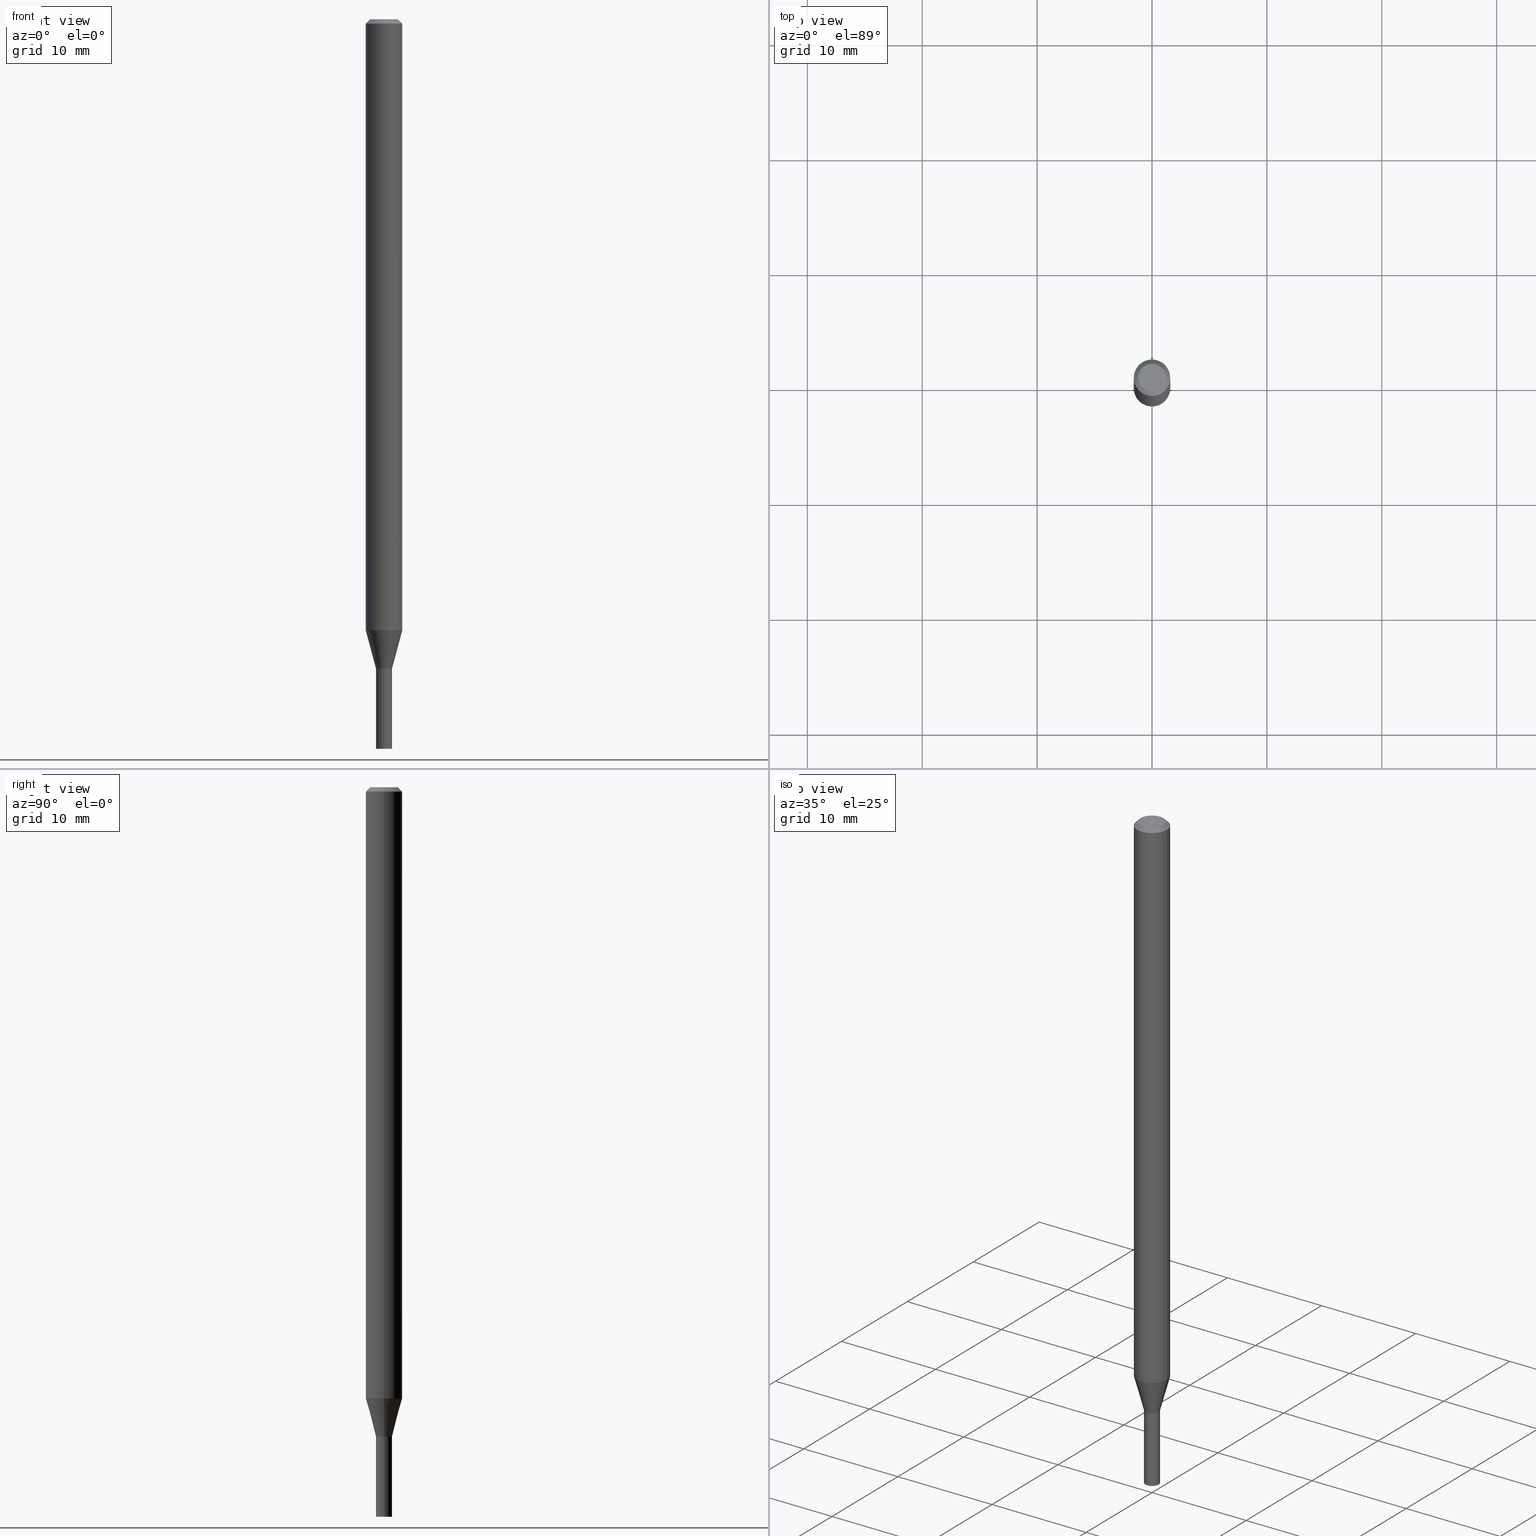
[diagram: canonical four-view strip — front | top / right | iso, engineering-drawing reading convention]
A machine part, canonical four-view strip (front | top / right | iso — engineering-drawing reading convention). The complete STEP part file that produces these views, byte-faithful:
ISO-10303-21;
HEADER;
FILE_DESCRIPTION (( 'STEP AP203' ),
    '1' );
FILE_NAME ('01238.STEP',
    '2024-03-20T00:24:33',
    ( '' ),
    ( '' ),
    'SwSTEP 2.0',
    'SolidWorks 2023',
    '' );
FILE_SCHEMA (( 'CONFIG_CONTROL_DESIGN' ));
ENDSEC;

DATA;
#1 = CIRCLE ( 'NONE', #261, 0.06250000000000000000 ) ;
#2 = ORIENTED_EDGE ( 'NONE', *, *, #334, .F. ) ;
#3 = APPLICATION_CONTEXT ( 'configuration controlled 3d designs of mechanical parts and assemblies' ) ;
#4 = DATE_AND_TIME ( #395, #352 ) ;
#5 = VERTEX_POINT ( 'NONE', #451 ) ;
#6 = CALENDAR_DATE ( 2024, 19, 3 ) ;
#7 = DIRECTION ( 'NONE',  ( 1.000000000000000000, -6.982962677686261189E-15, 0.000000000000000000 ) ) ;
#8 = EDGE_LOOP ( 'NONE', ( #46, #187, #230, #447 ) ) ;
#9 = APPLICATION_PROTOCOL_DEFINITION ( 'international standard', 'config_control_design', 1994, #3 ) ;
#10 = VERTEX_POINT ( 'NONE', #122 ) ;
#11 = APPROVAL_ROLE ( '' ) ;
#12 = AXIS2_PLACEMENT_3D ( 'NONE', #133, #233, #227 ) ;
#13 =( GEOMETRIC_REPRESENTATION_CONTEXT ( 3 ) GLOBAL_UNCERTAINTY_ASSIGNED_CONTEXT ( ( #183 ) ) GLOBAL_UNIT_ASSIGNED_CONTEXT ( ( #405, #332, #111 ) ) REPRESENTATION_CONTEXT ( 'NONE', 'WORKASPACE' ) );
#14 = ORIENTED_EDGE ( 'NONE', *, *, #35, .F. ) ;
#15 = CARTESIAN_POINT ( 'NONE',  ( 0.02750000000000019790, -7.960577452562373396E-15, -2.225000000000000089 ) ) ;
#16 = DIRECTION ( 'NONE',  ( -2.445468806185136877E-29, 3.491481338843145188E-15, 1.000000000000000000 ) ) ;
#17 = CYLINDRICAL_SURFACE ( 'NONE', #114, 0.06250000000000000000 ) ;
#18 = AXIS2_PLACEMENT_3D ( 'NONE', #272, #291, #70 ) ;
#19 = PRODUCT ( '01238', '01238', '', ( #148 ) ) ;
#20 = DIRECTION ( 'NONE',  ( -2.445468806185136877E-29, 3.491481338843145188E-15, 1.000000000000000000 ) ) ;
#21 = ADVANCED_FACE ( 'NONE', ( #89 ), #336, .T. ) ;
#22 = ORIENTED_EDGE ( 'NONE', *, *, #237, .T. ) ;
#23 = DIRECTION ( 'NONE',  ( 1.000000000000000000, -6.982962677686261189E-15, 0.000000000000000000 ) ) ;
#24 = EDGE_LOOP ( 'NONE', ( #253, #36, #341, #112 ) ) ;
#25 = CARTESIAN_POINT ( 'NONE',  ( -0.02750000000000000014, 1.953992523340275521E-16, -1.352707149820099181E-30 ) ) ;
#26 = EDGE_LOOP ( 'NONE', ( #182, #77, #255, #379 ) ) ;
#27 = ADVANCED_FACE ( 'NONE', ( #278 ), #17, .T. ) ;
#28 = CARTESIAN_POINT ( 'NONE',  ( 3.316907271900976096E-16, 0.04749999999999999362, -1.231061139556668131E-16 ) ) ;
#29 = AXIS2_PLACEMENT_3D ( 'NONE', #410, #79, #374 ) ;
#30 = CARTESIAN_POINT ( 'NONE',  ( -0.02750000000000019790, -7.573146726591970418E-15, -2.225000000000000089 ) ) ;
#31 = FACE_OUTER_BOUND ( 'NONE', #103, .T. ) ;
#32 = LINE ( 'NONE', #242, #193 ) ;
#33 = AXIS2_PLACEMENT_3D ( 'NONE', #243, #34, #421 ) ;
#34 = DIRECTION ( 'NONE',  ( 2.445468806185136597E-29, -3.491481338843145583E-15, -1.000000000000000000 ) ) ;
#35 = EDGE_CURVE ( 'NONE', #5, #403, #234, .T. ) ;
#36 = ORIENTED_EDGE ( 'NONE', *, *, #401, .T. ) ;
#37 = PRODUCT_DEFINITION ( 'UNKNOWN', '', #85, #276 ) ;
#38 = AXIS2_PLACEMENT_3D ( 'NONE', #270, #224, #83 ) ;
#39 = CONICAL_SURFACE ( 'NONE', #363, 0.02699999999999999969, 0.7853981633974739252 ) ;
#40 = EDGE_LOOP ( 'NONE', ( #258, #145, #2, #157 ) ) ;
#41 = ORIENTED_EDGE ( 'NONE', *, *, #203, .T. ) ;
#42 = PERSON_AND_ORGANIZATION ( #178, #330 ) ;
#43 = EDGE_CURVE ( 'NONE', #403, #163, #370, .T. ) ;
#44 = ORIENTED_EDGE ( 'NONE', *, *, #371, .F. ) ;
#45 = VERTEX_POINT ( 'NONE', #372 ) ;
#46 = ORIENTED_EDGE ( 'NONE', *, *, #438, .F. ) ;
#47 = EDGE_CURVE ( 'NONE', #211, #126, #302, .T. ) ;
#48 = CARTESIAN_POINT ( 'NONE',  ( 0.02699999999999999969, -7.957085971223528811E-15, -2.225000000000000533 ) ) ;
#49 = ORIENTED_EDGE ( 'NONE', *, *, #422, .F. ) ;
#50 = PERSON_AND_ORGANIZATION_ROLE ( 'creator' ) ;
#51 = VECTOR ( 'NONE', #390, 39.37007874015748854 ) ;
#52 = SECURITY_CLASSIFICATION ( '', '', #113 ) ;
#53 = DIRECTION ( 'NONE',  ( 1.000000000000000000, -6.982962677686265133E-15, 0.000000000000000000 ) ) ;
#54 = ORIENTED_EDGE ( 'NONE', *, *, #35, .T. ) ;
#55 = FACE_OUTER_BOUND ( 'NONE', #179, .T. ) ;
#56 = VERTEX_POINT ( 'NONE', #347 ) ;
#57 = DIRECTION ( 'NONE',  ( 1.000000000000000000, -6.982962677686261189E-15, 0.000000000000000000 ) ) ;
#58 = LINE ( 'NONE', #282, #143 ) ;
#59 = APPROVAL ( #448, 'UNSPECIFIED' ) ;
#60 = AXIS2_PLACEMENT_3D ( 'NONE', #304, #119, #266 ) ;
#61 = CARTESIAN_POINT ( 'NONE',  ( -0.04749999999999999362, 3.578768372314211985E-16, 8.547849927876276309E-17 ) ) ;
#62 = FACE_OUTER_BOUND ( 'NONE', #407, .T. ) ;
#63 = ADVANCED_FACE ( 'NONE', ( #131 ), #212, .T. ) ;
#64 = FACE_OUTER_BOUND ( 'NONE', #26, .T. ) ;
#65 = CIRCLE ( 'NONE', #176, 0.02750000000000019790 ) ;
#66 = ADVANCED_FACE ( 'NONE', ( #409 ), #160, .T. ) ;
#67 = APPROVAL_STATUS ( 'not_yet_approved' ) ;
#68 = AXIS2_PLACEMENT_3D ( 'NONE', #386, #93, #461 ) ;
#69 = VERTEX_POINT ( 'NONE', #285 ) ;
#70 = DIRECTION ( 'NONE',  ( 1.000000000000000000, -6.982962677686267499E-15, 4.884662768193073002E-29 ) ) ;
#71 = ORIENTED_EDGE ( 'NONE', *, *, #296, .F. ) ;
#72 = CARTESIAN_POINT ( 'NONE',  ( 5.439945359358836799E-29, -7.766800238256577822E-15, -2.224500000000000366 ) ) ;
#73 = VERTEX_POINT ( 'NONE', #139 ) ;
#74 = CONICAL_SURFACE ( 'NONE', #144, 0.06250000000000000000, 0.7853981633974456145 ) ;
#75 = APPROVAL_PERSON_ORGANIZATION ( #321, #394, #11 ) ;
#76 = DIRECTION ( 'NONE',  ( -2.445468806185136877E-29, 3.491481338843145188E-15, 1.000000000000000000 ) ) ;
#77 = ORIENTED_EDGE ( 'NONE', *, *, #124, .T. ) ;
#78 = PERSON_AND_ORGANIZATION ( #178, #330 ) ;
#79 = DIRECTION ( 'NONE',  ( -2.445468806185136597E-29, 3.491481338843145583E-15, 1.000000000000000000 ) ) ;
#80 = ORIENTED_EDGE ( 'NONE', *, *, #366, .F. ) ;
#81 = SHAPE_DEFINITION_REPRESENTATION ( #86, #216 ) ;
#82 = CARTESIAN_POINT ( 'NONE',  ( 0.000000000000000000, 0.000000000000000000, 0.000000000000000000 ) ) ;
#83 = DIRECTION ( 'NONE',  ( 1.000000000000000000, -6.982962677686266711E-15, 4.876176775795935793E-29 ) ) ;
#84 = VECTOR ( 'NONE', #20, 39.37007874015748143 ) ;
#85 = PRODUCT_DEFINITION_FORMATION_WITH_SPECIFIED_SOURCE ( 'ANY', '', #19, .NOT_KNOWN. ) ;
#86 = PRODUCT_DEFINITION_SHAPE ( 'NONE', 'NONE',  #37 ) ;
#87 = CARTESIAN_POINT ( 'NONE',  ( 6.113672015462842613E-29, -8.728703347107864943E-15, -2.500000000000000000 ) ) ;
#88 = ADVANCED_FACE ( 'NONE', ( #463 ), #459, .F. ) ;
#89 = FACE_OUTER_BOUND ( 'NONE', #110, .T. ) ;
#90 = DIRECTION ( 'NONE',  ( -2.445468806185136597E-29, 3.491481338843145583E-15, 1.000000000000000000 ) ) ;
#91 = DIRECTION ( 'NONE',  ( -2.445468806185136597E-29, 3.491481338843145583E-15, 1.000000000000000000 ) ) ;
#92 = DIRECTION ( 'NONE',  ( -2.445468806185136597E-29, 3.491481338843145583E-15, 1.000000000000000000 ) ) ;
#93 = DIRECTION ( 'NONE',  ( -2.438088387897960049E-29, 3.491481338843145188E-15, 1.000000000000000000 ) ) ;
#94 = AXIS2_PLACEMENT_3D ( 'NONE', #382, #238, #57 ) ;
#95 = DIRECTION ( 'NONE',  ( -2.445468806185136597E-29, 3.491481338843145583E-15, 1.000000000000000000 ) ) ;
#96 = EDGE_CURVE ( 'NONE', #126, #333, #58, .T. ) ;
#97 = DIRECTION ( 'NONE',  ( -2.445468806185136597E-29, 3.491481338843145583E-15, 1.000000000000000000 ) ) ;
#98 = DIRECTION ( 'NONE',  ( -2.445468806185136597E-29, 3.491481338843145583E-15, 1.000000000000000000 ) ) ;
#99 = DIRECTION ( 'NONE',  ( -2.445468806185136597E-29, 3.491481338843145583E-15, 1.000000000000000000 ) ) ;
#100 = CARTESIAN_POINT ( 'NONE',  ( 3.668203209277705088E-31, -5.237222008264718399E-17, -0.01499999999999999944 ) ) ;
#101 = AXIS2_PLACEMENT_3D ( 'NONE', #87, #90, #159 ) ;
#102 = PERSON_AND_ORGANIZATION ( #178, #330 ) ;
#103 = EDGE_LOOP ( 'NONE', ( #44, #417 ) ) ;
#104 = VERTEX_POINT ( 'NONE', #141 ) ;
#105 = AXIS2_PLACEMENT_3D ( 'NONE', #376, #307, #172 ) ;
#106 = EDGE_LOOP ( 'NONE', ( #221, #185, #273, #289 ) ) ;
#107 = AXIS2_PLACEMENT_3D ( 'NONE', #72, #264, #437 ) ;
#108 = PERSON_AND_ORGANIZATION_ROLE ( 'creator' ) ;
#109 = ADVANCED_FACE ( 'NONE', ( #64 ), #423, .F. ) ;
#110 = EDGE_LOOP ( 'NONE', ( #41, #361, #49, #298 ) ) ;
#111 =( NAMED_UNIT ( * ) SI_UNIT ( $, .STERADIAN. ) SOLID_ANGLE_UNIT ( ) );
#112 = ORIENTED_EDGE ( 'NONE', *, *, #457, .F. ) ;
#113 = SECURITY_CLASSIFICATION_LEVEL ( 'unclassified' ) ;
#114 = AXIS2_PLACEMENT_3D ( 'NONE', #455, #170, #375 ) ;
#115 = CC_DESIGN_PERSON_AND_ORGANIZATION_ASSIGNMENT ( #42, #326, ( #19 ) ) ;
#116 = DIRECTION ( 'NONE',  ( -2.445468806185136597E-29, 3.491481338843145583E-15, 1.000000000000000000 ) ) ;
#117 = AXIS2_PLACEMENT_3D ( 'NONE', #269, #162, #169 ) ;
#118 = CARTESIAN_POINT ( 'NONE',  ( 0.06250000000000000000, -7.748917645022951248E-15, -2.094378221735090584 ) ) ;
#119 = DIRECTION ( 'NONE',  ( -2.445468806185136597E-29, 3.491481338843145583E-15, 1.000000000000000000 ) ) ;
#120 = CC_DESIGN_DATE_AND_TIME_ASSIGNMENT ( #267, #164, ( #52 ) ) ;
#121 = DIRECTION ( 'NONE',  ( -2.445468806185136597E-29, 3.491481338843145583E-15, 1.000000000000000000 ) ) ;
#122 = CARTESIAN_POINT ( 'NONE',  ( -0.02750000000000000014, -8.053225410682903621E-15, -2.225000000000000089 ) ) ;
#123 = DATE_AND_TIME ( #442, #400 ) ;
#124 = EDGE_CURVE ( 'NONE', #73, #331, #32, .T. ) ;
#125 = CARTESIAN_POINT ( 'NONE',  ( 0.06250000000000000000, -4.811533449433679005E-16, -0.01499999999999999944 ) ) ;
#126 = VERTEX_POINT ( 'NONE', #315 ) ;
#127 = CALENDAR_DATE ( 2024, 19, 3 ) ;
#128 = CIRCLE ( 'NONE', #377, 0.02750000000000000014 ) ;
#129 = LOCAL_TIME ( 20, 24, 33.00000000000000000, #259 ) ;
#130 = CARTESIAN_POINT ( 'NONE',  ( -0.06250000000000000000, 4.440892098500626162E-16, -3.074334431409316114E-30 ) ) ;
#131 = FACE_OUTER_BOUND ( 'NONE', #293, .T. ) ;
#132 = DIMENSIONAL_EXPONENTS ( 1.000000000000000000, 0.000000000000000000, 0.000000000000000000, 0.000000000000000000, 0.000000000000000000, 0.000000000000000000, 0.000000000000000000 ) ;
#133 = CARTESIAN_POINT ( 'NONE',  ( 5.441168093761929600E-29, -7.768545978926000114E-15, -2.225000000000000533 ) ) ;
#134 = DIRECTION ( 'NONE',  ( 1.000000000000000000, -6.982962677686265133E-15, 0.000000000000000000 ) ) ;
#135 = CARTESIAN_POINT ( 'NONE',  ( 5.441168093761929600E-29, -7.768545978926000114E-15, -2.225000000000000533 ) ) ;
#136 = DIRECTION ( 'NONE',  ( 1.000000000000000000, -6.982962677686279332E-15, 0.000000000000000000 ) ) ;
#137 = EDGE_CURVE ( 'NONE', #228, #295, #175, .T. ) ;
#138 = VECTOR ( 'NONE', #173, 39.37007874015747433 ) ;
#139 = CARTESIAN_POINT ( 'NONE',  ( -0.02750000000000019790, -7.220769997204734479E-15, -2.225000000000000089 ) ) ;
#140 = CARTESIAN_POINT ( 'NONE',  ( 3.668203209277705088E-31, -5.237222008264718399E-17, -0.01499999999999999944 ) ) ;
#141 = CARTESIAN_POINT ( 'NONE',  ( 0.02750000000000019790, -7.958831711892951103E-15, -2.224500000000000366 ) ) ;
#142 = CARTESIAN_POINT ( 'NONE',  ( 0.000000000000000000, 0.000000000000000000, 0.000000000000000000 ) ) ;
#143 = VECTOR ( 'NONE', #356, 39.37007874015748143 ) ;
#144 = AXIS2_PLACEMENT_3D ( 'NONE', #387, #358, #465 ) ;
#145 = ORIENTED_EDGE ( 'NONE', *, *, #345, .T. ) ;
#146 = DIRECTION ( 'NONE',  ( 1.000000000000000000, -6.982962677686266711E-15, 0.000000000000000000 ) ) ;
#147 = ORIENTED_EDGE ( 'NONE', *, *, #320, .F. ) ;
#148 = MECHANICAL_CONTEXT ( 'NONE', #155, 'mechanical' ) ;
#149 = ORIENTED_EDGE ( 'NONE', *, *, #449, .T. ) ;
#150 = CIRCLE ( 'NONE', #101, 0.02750000000000000014 ) ;
#151 = ORIENTED_EDGE ( 'NONE', *, *, #438, .T. ) ;
#152 = CALENDAR_DATE ( 2024, 19, 3 ) ;
#153 =( LENGTH_UNIT ( ) NAMED_UNIT ( * ) SI_UNIT ( $, .METRE. ) );
#154 = EDGE_LOOP ( 'NONE', ( #431, #402 ) ) ;
#155 = APPLICATION_CONTEXT ( 'configuration controlled 3d designs of mechanical parts and assemblies' ) ;
#156 = EDGE_CURVE ( 'NONE', #228, #69, #339, .T. ) ;
#157 = ORIENTED_EDGE ( 'NONE', *, *, #96, .F. ) ;
#158 = LINE ( 'NONE', #226, #434 ) ;
#159 = DIRECTION ( 'NONE',  ( 1.000000000000000000, -6.982962677686244622E-15, 0.000000000000000000 ) ) ;
#160 = CYLINDRICAL_SURFACE ( 'NONE', #60, 0.02750000000000000014 ) ;
#161 = AXIS2_PLACEMENT_3D ( 'NONE', #338, #92, #53 ) ;
#162 = DIRECTION ( 'NONE',  ( 2.438088387897960049E-29, -3.491481338843145188E-15, -1.000000000000000000 ) ) ;
#163 = VERTEX_POINT ( 'NONE', #241 ) ;
#164 = DATE_TIME_ROLE ( 'classification_date' ) ;
#165 = PLANE ( 'NONE',  #312 ) ;
#166 = ORIENTED_EDGE ( 'NONE', *, *, #334, .T. ) ;
#167 = PERSON_AND_ORGANIZATION ( #178, #330 ) ;
#168 = CC_DESIGN_PERSON_AND_ORGANIZATION_ASSIGNMENT ( #78, #225, ( #85 ) ) ;
#169 = DIRECTION ( 'NONE',  ( -1.000000000000000000, 6.982962677686265922E-15, -4.876176775795935793E-29 ) ) ;
#170 = DIRECTION ( 'NONE',  ( -2.445468806185136597E-29, 3.491481338843145583E-15, 1.000000000000000000 ) ) ;
#171 = CONICAL_SURFACE ( 'NONE', #33, 0.06250000000000000000, 0.7853981633974456145 ) ;
#172 = DIRECTION ( 'NONE',  ( 1.000000000000000000, -6.982962677686265133E-15, 0.000000000000000000 ) ) ;
#173 = DIRECTION ( 'NONE',  ( -0.2588190451025213501, 5.211531920934551042E-15, 0.9659258262890682012 ) ) ;
#174 = CARTESIAN_POINT ( 'NONE',  ( 5.441168093761929600E-29, -7.768545978925998537E-15, -2.225000000000000089 ) ) ;
#175 = LINE ( 'NONE', #318, #51 ) ;
#176 = AXIS2_PLACEMENT_3D ( 'NONE', #174, #314, #134 ) ;
#177 = CARTESIAN_POINT ( 'NONE',  ( 0.000000000000000000, 0.000000000000000000, 0.000000000000000000 ) ) ;
#178 = PERSON ( 'UNSPECIFIED', 'UNSPECIFIED', 'UNSPECIFIED', ('UNSPECIFIED'), ('UNSPECIFIED'), ('UNSPECIFIED') ) ;
#179 = EDGE_LOOP ( 'NONE', ( #300, #22, #54, #219 ) ) ;
#180 = CLOSED_SHELL ( 'NONE', ( #109, #392, #414, #21, #63, #317, #27, #208, #309, #254, #432, #268 ) ) ;
#181 = AXIS2_PLACEMENT_3D ( 'NONE', #207, #99, #388 ) ;
#182 = ORIENTED_EDGE ( 'NONE', *, *, #237, .F. ) ;
#183 = UNCERTAINTY_MEASURE_WITH_UNIT (LENGTH_MEASURE( 1.000000000000000082E-05 ), #405, 'distance_accuracy_value', 'NONE');
#184 = EDGE_CURVE ( 'NONE', #10, #333, #351, .T. ) ;
#185 = ORIENTED_EDGE ( 'NONE', *, *, #47, .T. ) ;
#186 = AXIS2_PLACEMENT_3D ( 'NONE', #235, #121, #23 ) ;
#187 = ORIENTED_EDGE ( 'NONE', *, *, #296, .T. ) ;
#188 = DIRECTION ( 'NONE',  ( 0.2588190451025213501, 1.565188264969621968E-15, 0.9659258262890682012 ) ) ;
#189 = DIRECTION ( 'NONE',  ( 1.000000000000000000, -6.982962677686266711E-15, 4.876176775795935793E-29 ) ) ;
#190 = ORIENTED_EDGE ( 'NONE', *, *, #43, .T. ) ;
#191 = LINE ( 'NONE', #48, #322 ) ;
#192 = CARTESIAN_POINT ( 'NONE',  ( 0.06250000000000000000, -4.364351673553916694E-16, 3.047610484872459871E-30 ) ) ;
#193 = VECTOR ( 'NONE', #424, 39.37007874015748143 ) ;
#194 = PERSON_AND_ORGANIZATION ( #178, #330 ) ;
#195 = CYLINDRICAL_SURFACE ( 'NONE', #274, 0.02750000000000019790 ) ;
#196 = ADVANCED_FACE ( 'NONE', ( #458 ), #427, .T. ) ;
#197 = DIRECTION ( 'NONE',  ( 1.000000000000000000, -6.982962677686244622E-15, 0.000000000000000000 ) ) ;
#198 = DIRECTION ( 'NONE',  ( 1.000000000000000000, -6.982962677686279332E-15, 0.000000000000000000 ) ) ;
#199 = CARTESIAN_POINT ( 'NONE',  ( 6.113672015462842613E-29, -8.728703347107864943E-15, -2.500000000000000000 ) ) ;
#200 = DIRECTION ( 'NONE',  ( -2.445468806185136597E-29, 3.491481338843145583E-15, 1.000000000000000000 ) ) ;
#201 = DIRECTION ( 'NONE',  ( 1.000000000000000000, -6.982962677686267499E-15, 4.884662768193073002E-29 ) ) ;
#202 = AXIS2_PLACEMENT_3D ( 'NONE', #140, #97, #425 ) ;
#203 = EDGE_CURVE ( 'NONE', #403, #439, #209, .T. ) ;
#204 = DIRECTION ( 'NONE',  ( -2.445468806185136597E-29, 3.491481338843145583E-15, 1.000000000000000000 ) ) ;
#205 = CC_DESIGN_PERSON_AND_ORGANIZATION_ASSIGNMENT ( #365, #108, ( #37 ) ) ;
#206 = DIRECTION ( 'NONE',  ( 1.000000000000000000, -6.982962677686262766E-15, 0.000000000000000000 ) ) ;
#207 = CARTESIAN_POINT ( 'NONE',  ( 0.000000000000000000, 0.000000000000000000, 0.000000000000000000 ) ) ;
#208 = ADVANCED_FACE ( 'NONE', ( #62 ), #171, .T. ) ;
#209 = CIRCLE ( 'NONE', #428, 0.06250000000000000000 ) ;
#210 = APPROVAL_ROLE ( '' ) ;
#211 = VERTEX_POINT ( 'NONE', #391 ) ;
#212 = CONICAL_SURFACE ( 'NONE', #283, 0.02750000000000019790, 0.2617993877991500740 ) ;
#213 = VECTOR ( 'NONE', #16, 39.37007874015748143 ) ;
#214 = CC_DESIGN_APPROVAL ( #394, ( #37 ) ) ;
#215 = ORIENTED_EDGE ( 'NONE', *, *, #248, .T. ) ;
#216 = ADVANCED_BREP_SHAPE_REPRESENTATION ( '01238', ( #319, #327, #262 ), #13 ) ;
#217 = CARTESIAN_POINT ( 'NONE',  ( -0.06250000000000000000, -6.868393267817497752E-15, -2.094378221735090584 ) ) ;
#218 = EDGE_CURVE ( 'NONE', #73, #439, #350, .T. ) ;
#219 = ORIENTED_EDGE ( 'NONE', *, *, #406, .F. ) ;
#220 = CIRCLE ( 'NONE', #29, 0.06250000000000000000 ) ;
#221 = ORIENTED_EDGE ( 'NONE', *, *, #345, .F. ) ;
#222 = CC_DESIGN_SECURITY_CLASSIFICATION ( #52, ( #85 ) ) ;
#223 = APPROVAL_DATE_TIME ( #123, #59 ) ;
#224 = DIRECTION ( 'NONE',  ( -2.445468806185136597E-29, 3.491481338843145583E-15, 1.000000000000000000 ) ) ;
#225 = PERSON_AND_ORGANIZATION_ROLE ( 'design_supplier' ) ;
#226 = CARTESIAN_POINT ( 'NONE',  ( 0.02750000000000019790, -1.920314736363737249E-16, 1.340948613343892047E-30 ) ) ;
#227 = DIRECTION ( 'NONE',  ( 1.000000000000000000, -6.982962677686265922E-15, 4.876176775795935793E-29 ) ) ;
#228 = VERTEX_POINT ( 'NONE', #61 ) ;
#229 = LINE ( 'NONE', #130, #213 ) ;
#230 = ORIENTED_EDGE ( 'NONE', *, *, #422, .T. ) ;
#231 = AXIS2_PLACEMENT_3D ( 'NONE', #281, #204, #353 ) ;
#232 = FACE_OUTER_BOUND ( 'NONE', #24, .T. ) ;
#233 = DIRECTION ( 'NONE',  ( -2.438088387897960049E-29, 3.491481338843145188E-15, 1.000000000000000000 ) ) ;
#234 = LINE ( 'NONE', #15, #385 ) ;
#235 = CARTESIAN_POINT ( 'NONE',  ( 5.441168093761929600E-29, -7.768545978926000114E-15, -2.225000000000000533 ) ) ;
#236 = CARTESIAN_POINT ( 'NONE',  ( -2.090350035857389078E-45, 2.984465851041258834E-31, 8.547849927876517898E-17 ) ) ;
#237 = EDGE_CURVE ( 'NONE', #73, #5, #65, .T. ) ;
#238 = DIRECTION ( 'NONE',  ( -2.445468806185136597E-29, 3.491481338843145583E-15, 1.000000000000000000 ) ) ;
#239 = DIRECTION ( 'NONE',  ( -2.445468806185136597E-29, 3.491481338843145583E-15, 1.000000000000000000 ) ) ;
#240 = CIRCLE ( 'NONE', #18, 0.04749999999999999362 ) ;
#241 = CARTESIAN_POINT ( 'NONE',  ( 0.06250000000000000000, -4.888073874380388472E-16, -0.01499999999999999944 ) ) ;
#242 = CARTESIAN_POINT ( 'NONE',  ( -0.02750000000000019790, 1.953992523340289573E-16, -1.352707149820108815E-30 ) ) ;
#243 = CARTESIAN_POINT ( 'NONE',  ( 3.668203209277705088E-31, -5.237222008264718399E-17, -0.01499999999999999944 ) ) ;
#244 = CONICAL_SURFACE ( 'NONE', #94, 0.02699999999999999969, 0.7853981633974739252 ) ;
#245 = FACE_OUTER_BOUND ( 'NONE', #8, .T. ) ;
#246 = COORDINATED_UNIVERSAL_TIME_OFFSET ( 5, 0, .BEHIND. ) ;
#247 = ORIENTED_EDGE ( 'NONE', *, *, #124, .F. ) ;
#248 = EDGE_CURVE ( 'NONE', #104, #331, #357, .T. ) ;
#249 = COORDINATED_UNIVERSAL_TIME_OFFSET ( 5, 0, .BEHIND. ) ;
#250 = ORIENTED_EDGE ( 'NONE', *, *, #156, .F. ) ;
#251 = COORDINATED_UNIVERSAL_TIME_OFFSET ( 5, 0, .BEHIND. ) ;
#252 = VECTOR ( 'NONE', #305, 39.37007874015748854 ) ;
#253 = ORIENTED_EDGE ( 'NONE', *, *, #277, .F. ) ;
#254 = ADVANCED_FACE ( 'NONE', ( #31 ), #348, .F. ) ;
#255 = ORIENTED_EDGE ( 'NONE', *, *, #457, .T. ) ;
#256 = DATE_TIME_ROLE ( 'creation_date' ) ;
#257 = LENGTH_MEASURE_WITH_UNIT ( LENGTH_MEASURE( 0.02539999999999999897 ), #153 );
#258 = ORIENTED_EDGE ( 'NONE', *, *, #359, .T. ) ;
#259 = COORDINATED_UNIVERSAL_TIME_OFFSET ( 5, 0, .BEHIND. ) ;
#260 = CLOSED_SHELL ( 'NONE', ( #196, #88, #66, #354 ) ) ;
#261 = AXIS2_PLACEMENT_3D ( 'NONE', #100, #360, #146 ) ;
#262 = AXIS2_PLACEMENT_3D ( 'NONE', #142, #290, #299 ) ;
#263 = DIRECTION ( 'NONE',  ( 1.000000000000000000, -6.982962677686265133E-15, 0.000000000000000000 ) ) ;
#264 = DIRECTION ( 'NONE',  ( -2.445468806185136597E-29, 3.491481338843145583E-15, 1.000000000000000000 ) ) ;
#265 = LINE ( 'NONE', #346, #460 ) ;
#266 = DIRECTION ( 'NONE',  ( 1.000000000000000000, -6.982962677686266711E-15, 4.876176775795935793E-29 ) ) ;
#267 = DATE_AND_TIME ( #127, #129 ) ;
#268 = ADVANCED_FACE ( 'NONE', ( #412 ), #195, .F. ) ;
#269 = CARTESIAN_POINT ( 'NONE',  ( 1.920314736364267512E-16, 0.02749999999999223205, -2.225000000000000089 ) ) ;
#270 = CARTESIAN_POINT ( 'NONE',  ( 0.000000000000000000, 0.000000000000000000, 0.000000000000000000 ) ) ;
#271 = DIRECTION ( 'NONE',  ( -0.7071067811865656694, 7.493145998870420424E-15, 0.7071067811865294761 ) ) ;
#272 = CARTESIAN_POINT ( 'NONE',  ( -2.090350035857389078E-45, 2.984465851041258834E-31, 8.547849927876517898E-17 ) ) ;
#273 = ORIENTED_EDGE ( 'NONE', *, *, #96, .T. ) ;
#274 = AXIS2_PLACEMENT_3D ( 'NONE', #82, #453, #189 ) ;
#275 = DIRECTION ( 'NONE',  ( -1.000000000000000000, 6.982962677686265922E-15, -4.876176775795935793E-29 ) ) ;
#276 = DESIGN_CONTEXT ( 'detailed design', #3, 'design' ) ;
#277 = EDGE_CURVE ( 'NONE', #45, #331, #265, .T. ) ;
#278 = FACE_OUTER_BOUND ( 'NONE', #328, .T. ) ;
#279 = CARTESIAN_POINT ( 'NONE',  ( 5.441168093761929600E-29, -7.768545978925998537E-15, -2.225000000000000089 ) ) ;
#280 = PRODUCT_RELATED_PRODUCT_CATEGORY ( 'detail', '', ( #19 ) ) ;
#281 = CARTESIAN_POINT ( 'NONE',  ( 5.439945359358836799E-29, -7.766800238256577822E-15, -2.224500000000000366 ) ) ;
#282 = CARTESIAN_POINT ( 'NONE',  ( 0.02750000000000000014, -1.920314736363723444E-16, 1.340948613343882413E-30 ) ) ;
#283 = AXIS2_PLACEMENT_3D ( 'NONE', #301, #116, #263 ) ;
#284 = APPROVAL_PERSON_ORGANIZATION ( #342, #59, #404 ) ;
#285 = CARTESIAN_POINT ( 'NONE',  ( 0.04749999999999999362, -4.035134999187576651E-16, 8.547849927876775510E-17 ) ) ;
#286 = DIRECTION ( 'NONE',  ( -2.445468806185136597E-29, 3.491481338843145583E-15, 1.000000000000000000 ) ) ;
#287 = LOCAL_TIME ( 20, 24, 33.00000000000000000, #249 ) ;
#288 = EDGE_CURVE ( 'NONE', #56, #104, #191, .T. ) ;
#289 = ORIENTED_EDGE ( 'NONE', *, *, #184, .F. ) ;
#290 = DIRECTION ( 'NONE',  ( 0.000000000000000000, 0.000000000000000000, 1.000000000000000000 ) ) ;
#291 = DIRECTION ( 'NONE',  ( -2.445468806185136597E-29, 3.491481338843145583E-15, 1.000000000000000000 ) ) ;
#292 = APPROVAL ( #466, 'UNSPECIFIED' ) ;
#293 = EDGE_LOOP ( 'NONE', ( #325, #396, #445, #14 ) ) ;
#294 = APPROVAL_DATE_TIME ( #397, #394 ) ;
#295 = VERTEX_POINT ( 'NONE', #335 ) ;
#296 = EDGE_CURVE ( 'NONE', #69, #163, #456, .T. ) ;
#297 = CONICAL_SURFACE ( 'NONE', #105, 0.02750000000000019790, 0.2617993877991500740 ) ;
#298 = ORIENTED_EDGE ( 'NONE', *, *, #43, .F. ) ;
#299 = DIRECTION ( 'NONE',  ( 1.000000000000000000, 0.000000000000000000, 0.000000000000000000 ) ) ;
#300 = ORIENTED_EDGE ( 'NONE', *, *, #218, .F. ) ;
#301 = CARTESIAN_POINT ( 'NONE',  ( 5.441168093761929600E-29, -7.768545978925998537E-15, -2.225000000000000089 ) ) ;
#302 = CIRCLE ( 'NONE', #362, 0.02750000000000000014 ) ;
#303 = DIRECTION ( 'NONE',  ( 1.000000000000000000, -6.982962677686261189E-15, 0.000000000000000000 ) ) ;
#304 = CARTESIAN_POINT ( 'NONE',  ( 0.000000000000000000, 0.000000000000000000, 0.000000000000000000 ) ) ;
#305 = DIRECTION ( 'NONE',  ( 0.7071067811865454633, -7.319954787623246579E-15, -0.7071067811865493491 ) ) ;
#306 = EDGE_LOOP ( 'NONE', ( #166, #413 ) ) ;
#307 = DIRECTION ( 'NONE',  ( -2.445468806185136597E-29, 3.491481338843145583E-15, 1.000000000000000000 ) ) ;
#308 = ORIENTED_EDGE ( 'NONE', *, *, #406, .T. ) ;
#309 = ADVANCED_FACE ( 'NONE', ( #380 ), #165, .F. ) ;
#310 = DIRECTION ( 'NONE',  ( 0.7071067811865656694, -2.468850131082446387E-15, 0.7071067811865294761 ) ) ;
#311 = DIRECTION ( 'NONE',  ( -2.445468806185136877E-29, 3.491481338843145188E-15, 1.000000000000000000 ) ) ;
#312 = AXIS2_PLACEMENT_3D ( 'NONE', #28, #415, #275 ) ;
#313 = CARTESIAN_POINT ( 'NONE',  ( 0.02750000000000000014, -7.960577452562371818E-15, -2.225000000000000089 ) ) ;
#314 = DIRECTION ( 'NONE',  ( -2.445468806185136597E-29, 3.491481338843145583E-15, 1.000000000000000000 ) ) ;
#315 = CARTESIAN_POINT ( 'NONE',  ( 0.02750000000000000014, -8.920734820744236646E-15, -2.500000000000000000 ) ) ;
#316 = CARTESIAN_POINT ( 'NONE',  ( 5.441168093761929600E-29, -7.768545978925998537E-15, -2.225000000000000089 ) ) ;
#317 = ADVANCED_FACE ( 'NONE', ( #55 ), #297, .T. ) ;
#318 = CARTESIAN_POINT ( 'NONE',  ( -0.06250000000000000000, 3.840629472727444916E-16, -0.01499999999999999944 ) ) ;
#319 = MANIFOLD_SOLID_BREP ( 'Body-Move/Copy2[1]', #260 ) ;
#320 = EDGE_CURVE ( 'NONE', #439, #295, #229, .T. ) ;
#321 = PERSON_AND_ORGANIZATION ( #178, #330 ) ;
#322 = VECTOR ( 'NONE', #310, 39.37007874015748143 ) ;
#323 = CIRCLE ( 'NONE', #107, 0.02750000000000019790 ) ;
#324 = CC_DESIGN_PERSON_AND_ORGANIZATION_ASSIGNMENT ( #167, #373, ( #52 ) ) ;
#325 = ORIENTED_EDGE ( 'NONE', *, *, #366, .T. ) ;
#326 = PERSON_AND_ORGANIZATION_ROLE ( 'design_owner' ) ;
#327 = MANIFOLD_SOLID_BREP ( 'Body-Move/Copy2[2]', #180 ) ;
#328 = EDGE_LOOP ( 'NONE', ( #147, #308, #190, #441 ) ) ;
#329 = AXIS2_PLACEMENT_3D ( 'NONE', #316, #286, #136 ) ;
#330 = ORGANIZATION ( 'UNSPECIFIED', 'UNSPECIFIED', '' ) ;
#331 = VERTEX_POINT ( 'NONE', #444 ) ;
#332 =( NAMED_UNIT ( * ) PLANE_ANGLE_UNIT ( ) SI_UNIT ( $, .RADIAN. ) );
#333 = VERTEX_POINT ( 'NONE', #313 ) ;
#334 = EDGE_CURVE ( 'NONE', #333, #10, #128, .T. ) ;
#335 = CARTESIAN_POINT ( 'NONE',  ( -0.06250000000000000000, -3.238338139025041305E-15, -0.01499999999999999944 ) ) ;
#336 = CYLINDRICAL_SURFACE ( 'NONE', #38, 0.06250000000000000000 ) ;
#337 = COORDINATED_UNIVERSAL_TIME_OFFSET ( 5, 0, .BEHIND. ) ;
#338 = CARTESIAN_POINT ( 'NONE',  ( 5.441168093761929600E-29, -7.768545978925998537E-15, -2.225000000000000089 ) ) ;
#339 = CIRCLE ( 'NONE', #408, 0.04749999999999999362 ) ;
#340 = CC_DESIGN_APPROVAL ( #292, ( #85 ) ) ;
#341 = ORIENTED_EDGE ( 'NONE', *, *, #288, .T. ) ;
#342 = PERSON_AND_ORGANIZATION ( #178, #330 ) ;
#343 = PLANE ( 'NONE',  #117 ) ;
#344 = ORIENTED_EDGE ( 'NONE', *, *, #426, .T. ) ;
#345 = EDGE_CURVE ( 'NONE', #211, #10, #418, .T. ) ;
#346 = CARTESIAN_POINT ( 'NONE',  ( -0.02699999999999999969, -7.576699440270773683E-15, -2.225000000000000533 ) ) ;
#347 = CARTESIAN_POINT ( 'NONE',  ( 0.02699999999999999969, -7.957085971223528811E-15, -2.225000000000000533 ) ) ;
#348 = PLANE ( 'NONE',  #12 ) ;
#349 = CIRCLE ( 'NONE', #202, 0.06250000000000000000 ) ;
#350 = LINE ( 'NONE', #30, #138 ) ;
#351 = CIRCLE ( 'NONE', #329, 0.02750000000000000014 ) ;
#352 = LOCAL_TIME ( 20, 24, 33.00000000000000000, #246 ) ;
#353 = DIRECTION ( 'NONE',  ( 1.000000000000000000, -6.982962677686265133E-15, 0.000000000000000000 ) ) ;
#354 = ADVANCED_FACE ( 'NONE', ( #450 ), #343, .F. ) ;
#355 = DIRECTION ( 'NONE',  ( 1.000000000000000000, -6.982962677686266711E-15, 4.876176775795935793E-29 ) ) ;
#356 = DIRECTION ( 'NONE',  ( -2.445468806185136877E-29, 3.491481338843145188E-15, 1.000000000000000000 ) ) ;
#357 = CIRCLE ( 'NONE', #231, 0.02750000000000019790 ) ;
#358 = DIRECTION ( 'NONE',  ( 2.445468806185136597E-29, -3.491481338843145583E-15, -1.000000000000000000 ) ) ;
#359 = EDGE_CURVE ( 'NONE', #126, #211, #150, .T. ) ;
#360 = DIRECTION ( 'NONE',  ( -2.445468806185136597E-29, 3.491481338843145583E-15, 1.000000000000000000 ) ) ;
#361 = ORIENTED_EDGE ( 'NONE', *, *, #320, .T. ) ;
#362 = AXIS2_PLACEMENT_3D ( 'NONE', #199, #91, #197 ) ;
#363 = AXIS2_PLACEMENT_3D ( 'NONE', #135, #452, #7 ) ;
#364 = ORIENTED_EDGE ( 'NONE', *, *, #248, .F. ) ;
#365 = PERSON_AND_ORGANIZATION ( #178, #330 ) ;
#366 = EDGE_CURVE ( 'NONE', #5, #73, #416, .T. ) ;
#367 = ORIENTED_EDGE ( 'NONE', *, *, #156, .T. ) ;
#368 = AXIS2_PLACEMENT_3D ( 'NONE', #384, #200, #303 ) ;
#369 = CC_DESIGN_APPROVAL ( #59, ( #52 ) ) ;
#370 = LINE ( 'NONE', #192, #443 ) ;
#371 = EDGE_CURVE ( 'NONE', #56, #45, #393, .T. ) ;
#372 = CARTESIAN_POINT ( 'NONE',  ( -0.02699999999999999969, -7.574050213096661693E-15, -2.225000000000000533 ) ) ;
#373 = PERSON_AND_ORGANIZATION_ROLE ( 'classification_officer' ) ;
#374 = DIRECTION ( 'NONE',  ( 1.000000000000000000, -6.982962677686262766E-15, 0.000000000000000000 ) ) ;
#375 = DIRECTION ( 'NONE',  ( 1.000000000000000000, -6.982962677686266711E-15, 4.876176775795935793E-29 ) ) ;
#376 = CARTESIAN_POINT ( 'NONE',  ( 5.441168093761929600E-29, -7.768545978925998537E-15, -2.225000000000000089 ) ) ;
#377 = AXIS2_PLACEMENT_3D ( 'NONE', #279, #420, #198 ) ;
#378 = APPROVAL_PERSON_ORGANIZATION ( #102, #292, #210 ) ;
#379 = ORIENTED_EDGE ( 'NONE', *, *, #449, .F. ) ;
#380 = FACE_OUTER_BOUND ( 'NONE', #429, .T. ) ;
#381 = EDGE_LOOP ( 'NONE', ( #247, #80, #149, #215 ) ) ;
#382 = CARTESIAN_POINT ( 'NONE',  ( 5.441168093761929600E-29, -7.768545978926000114E-15, -2.225000000000000533 ) ) ;
#383 = CARTESIAN_POINT ( 'NONE',  ( 5.121736609606660644E-29, -7.312482477667559579E-15, -2.094378221735090584 ) ) ;
#384 = CARTESIAN_POINT ( 'NONE',  ( 5.441168093761929600E-29, -7.768545978926000114E-15, -2.225000000000000533 ) ) ;
#385 = VECTOR ( 'NONE', #188, 39.37007874015747433 ) ;
#386 = CARTESIAN_POINT ( 'NONE',  ( 6.194428952736783458E-29, -8.613054816532157721E-15, -2.500000000000000000 ) ) ;
#387 = CARTESIAN_POINT ( 'NONE',  ( 3.668203209277705088E-31, -5.237222008264718399E-17, -0.01499999999999999944 ) ) ;
#388 = DIRECTION ( 'NONE',  ( 1.000000000000000000, -6.982962677686266711E-15, 4.876176775795935793E-29 ) ) ;
#389 = CC_DESIGN_DATE_AND_TIME_ASSIGNMENT ( #436, #256, ( #37 ) ) ;
#390 = DIRECTION ( 'NONE',  ( -0.7071067811865454633, 2.468850131082235761E-15, -0.7071067811865493491 ) ) ;
#391 = CARTESIAN_POINT ( 'NONE',  ( -0.02750000000000000014, -8.053225410682903621E-15, -2.500000000000000000 ) ) ;
#392 = ADVANCED_FACE ( 'NONE', ( #446 ), #244, .T. ) ;
#393 = CIRCLE ( 'NONE', #186, 0.02699999999999999969 ) ;
#394 = APPROVAL ( #67, 'UNSPECIFIED' ) ;
#395 = CALENDAR_DATE ( 2024, 19, 3 ) ;
#396 = ORIENTED_EDGE ( 'NONE', *, *, #218, .T. ) ;
#397 = DATE_AND_TIME ( #6, #287 ) ;
#398 = ORIENTED_EDGE ( 'NONE', *, *, #277, .T. ) ;
#399 = AXIS2_PLACEMENT_3D ( 'NONE', #177, #95, #355 ) ;
#400 = LOCAL_TIME ( 20, 24, 33.00000000000000000, #337 ) ;
#401 = EDGE_CURVE ( 'NONE', #45, #56, #454, .T. ) ;
#402 = ORIENTED_EDGE ( 'NONE', *, *, #47, .F. ) ;
#403 = VERTEX_POINT ( 'NONE', #118 ) ;
#404 = APPROVAL_ROLE ( '' ) ;
#405 =( CONVERSION_BASED_UNIT ( 'INCH', #257 ) LENGTH_UNIT ( ) NAMED_UNIT ( #132 ) );
#406 = EDGE_CURVE ( 'NONE', #439, #403, #220, .T. ) ;
#407 = EDGE_LOOP ( 'NONE', ( #71, #250, #411, #344 ) ) ;
#408 = AXIS2_PLACEMENT_3D ( 'NONE', #236, #98, #201 ) ;
#409 = FACE_OUTER_BOUND ( 'NONE', #106, .T. ) ;
#410 = CARTESIAN_POINT ( 'NONE',  ( 5.121736609606660644E-29, -7.312482477667559579E-15, -2.094378221735090584 ) ) ;
#411 = ORIENTED_EDGE ( 'NONE', *, *, #137, .T. ) ;
#412 = FACE_OUTER_BOUND ( 'NONE', #381, .T. ) ;
#413 = ORIENTED_EDGE ( 'NONE', *, *, #184, .T. ) ;
#414 = ADVANCED_FACE ( 'NONE', ( #245 ), #74, .T. ) ;
#415 = DIRECTION ( 'NONE',  ( 2.438088387897960049E-29, -3.491481338843145188E-15, -1.000000000000000000 ) ) ;
#416 = CIRCLE ( 'NONE', #161, 0.02750000000000019790 ) ;
#417 = ORIENTED_EDGE ( 'NONE', *, *, #401, .F. ) ;
#418 = LINE ( 'NONE', #25, #84 ) ;
#419 = ORIENTED_EDGE ( 'NONE', *, *, #288, .F. ) ;
#420 = DIRECTION ( 'NONE',  ( -2.445468806185136597E-29, 3.491481338843145583E-15, 1.000000000000000000 ) ) ;
#421 = DIRECTION ( 'NONE',  ( -1.000000000000000000, 6.982962677686266711E-15, 0.000000000000000000 ) ) ;
#422 = EDGE_CURVE ( 'NONE', #163, #295, #349, .T. ) ;
#423 = CYLINDRICAL_SURFACE ( 'NONE', #399, 0.02750000000000019790 ) ;
#424 = DIRECTION ( 'NONE',  ( -2.445468806185136877E-29, 3.491481338843145188E-15, 1.000000000000000000 ) ) ;
#425 = DIRECTION ( 'NONE',  ( 1.000000000000000000, -6.982962677686266711E-15, 0.000000000000000000 ) ) ;
#426 = EDGE_CURVE ( 'NONE', #295, #163, #1, .T. ) ;
#427 = CYLINDRICAL_SURFACE ( 'NONE', #181, 0.02750000000000000014 ) ;
#428 = AXIS2_PLACEMENT_3D ( 'NONE', #383, #239, #206 ) ;
#429 = EDGE_LOOP ( 'NONE', ( #367, #151 ) ) ;
#430 = APPLICATION_PROTOCOL_DEFINITION ( 'international standard', 'config_control_design', 1994, #155 ) ;
#431 = ORIENTED_EDGE ( 'NONE', *, *, #359, .F. ) ;
#432 = ADVANCED_FACE ( 'NONE', ( #232 ), #39, .T. ) ;
#433 = EDGE_LOOP ( 'NONE', ( #435, #398, #364, #419 ) ) ;
#434 = VECTOR ( 'NONE', #76, 39.37007874015748143 ) ;
#435 = ORIENTED_EDGE ( 'NONE', *, *, #371, .T. ) ;
#436 = DATE_AND_TIME ( #152, #462 ) ;
#437 = DIRECTION ( 'NONE',  ( 1.000000000000000000, -6.982962677686265133E-15, 0.000000000000000000 ) ) ;
#438 = EDGE_CURVE ( 'NONE', #69, #228, #240, .T. ) ;
#439 = VERTEX_POINT ( 'NONE', #217 ) ;
#440 = APPROVAL_DATE_TIME ( #4, #292 ) ;
#441 = ORIENTED_EDGE ( 'NONE', *, *, #426, .F. ) ;
#442 = CALENDAR_DATE ( 2024, 19, 3 ) ;
#443 = VECTOR ( 'NONE', #311, 39.37007874015748143 ) ;
#444 = CARTESIAN_POINT ( 'NONE',  ( -0.02750000000000019790, -7.571400985922549703E-15, -2.224500000000000366 ) ) ;
#445 = ORIENTED_EDGE ( 'NONE', *, *, #203, .F. ) ;
#446 = FACE_OUTER_BOUND ( 'NONE', #433, .T. ) ;
#447 = ORIENTED_EDGE ( 'NONE', *, *, #137, .F. ) ;
#448 = APPROVAL_STATUS ( 'not_yet_approved' ) ;
#449 = EDGE_CURVE ( 'NONE', #5, #104, #158, .T. ) ;
#450 = FACE_OUTER_BOUND ( 'NONE', #306, .T. ) ;
#451 = CARTESIAN_POINT ( 'NONE',  ( 0.02750000000000019790, -7.960577452562373396E-15, -2.225000000000000089 ) ) ;
#452 = DIRECTION ( 'NONE',  ( -2.445468806185136597E-29, 3.491481338843145583E-15, 1.000000000000000000 ) ) ;
#453 = DIRECTION ( 'NONE',  ( -2.445468806185136597E-29, 3.491481338843145583E-15, 1.000000000000000000 ) ) ;
#454 = CIRCLE ( 'NONE', #368, 0.02699999999999999969 ) ;
#455 = CARTESIAN_POINT ( 'NONE',  ( 0.000000000000000000, 0.000000000000000000, 0.000000000000000000 ) ) ;
#456 = LINE ( 'NONE', #125, #252 ) ;
#457 = EDGE_CURVE ( 'NONE', #331, #104, #323, .T. ) ;
#458 = FACE_OUTER_BOUND ( 'NONE', #40, .T. ) ;
#459 = PLANE ( 'NONE',  #68 ) ;
#460 = VECTOR ( 'NONE', #271, 39.37007874015748143 ) ;
#461 = DIRECTION ( 'NONE',  ( 1.000000000000000000, -6.982962677686265922E-15, 4.876176775795935793E-29 ) ) ;
#462 = LOCAL_TIME ( 20, 24, 33.00000000000000000, #251 ) ;
#463 = FACE_OUTER_BOUND ( 'NONE', #154, .T. ) ;
#464 = CC_DESIGN_PERSON_AND_ORGANIZATION_ASSIGNMENT ( #194, #50, ( #85 ) ) ;
#465 = DIRECTION ( 'NONE',  ( -1.000000000000000000, 6.982962677686266711E-15, 0.000000000000000000 ) ) ;
#466 = APPROVAL_STATUS ( 'not_yet_approved' ) ;
ENDSEC;
END-ISO-10303-21;
